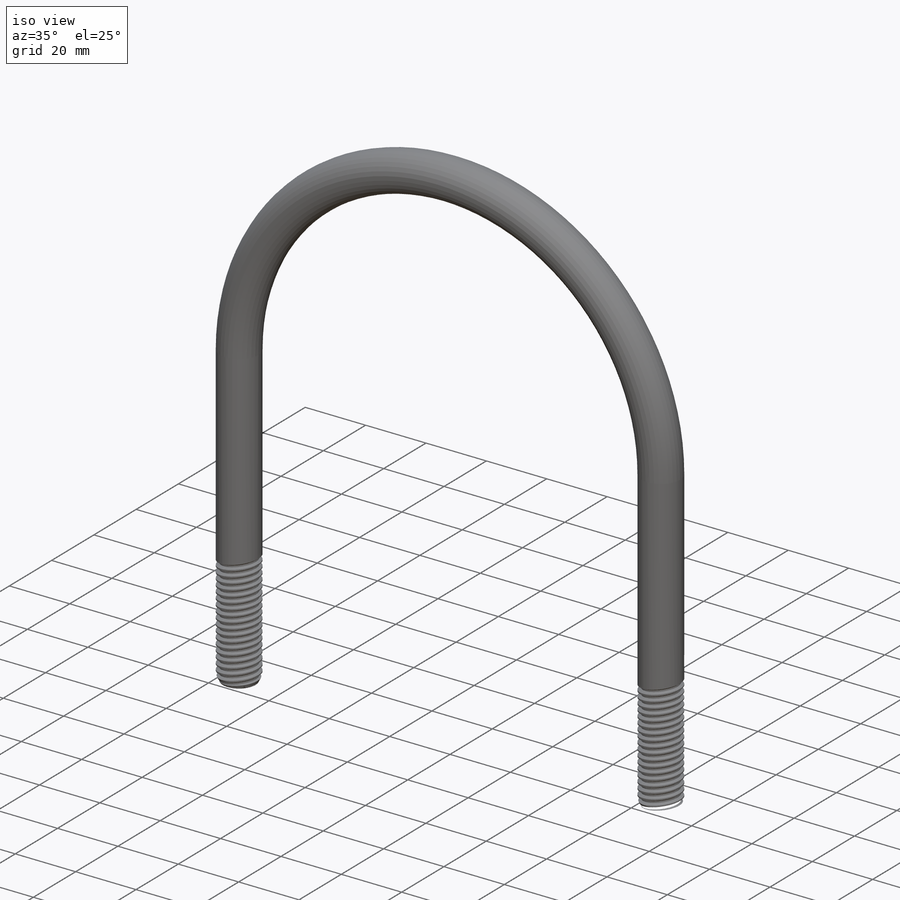
[diagram: iso view]
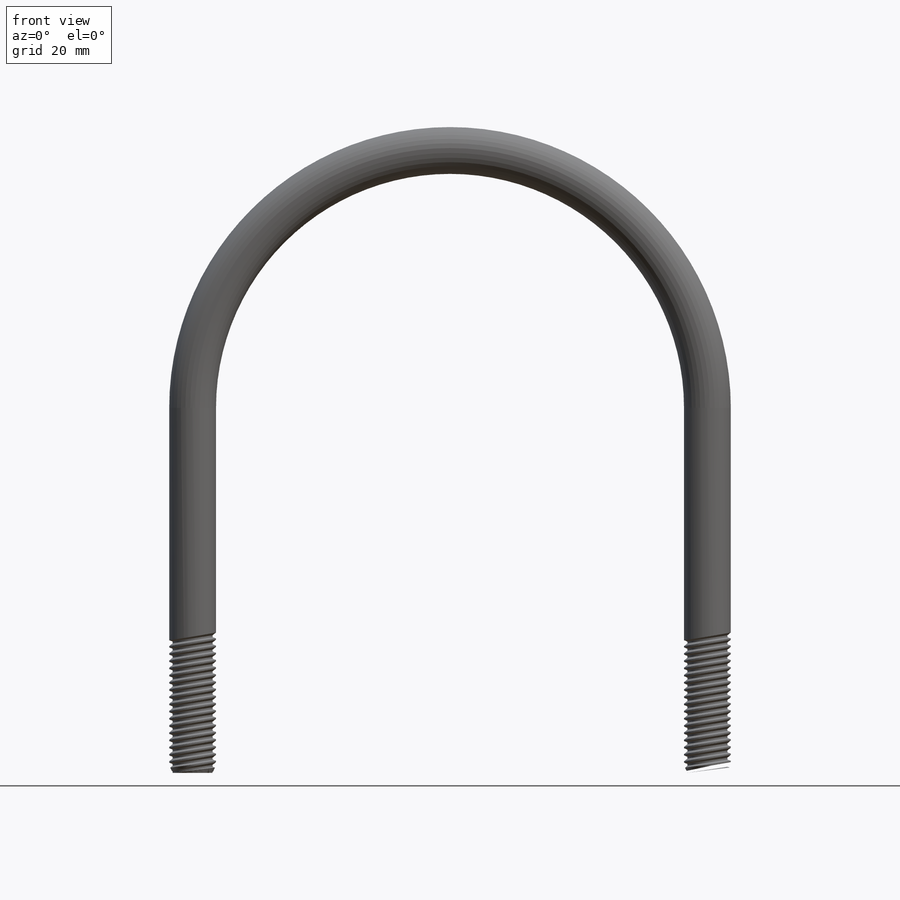
[diagram: front view]
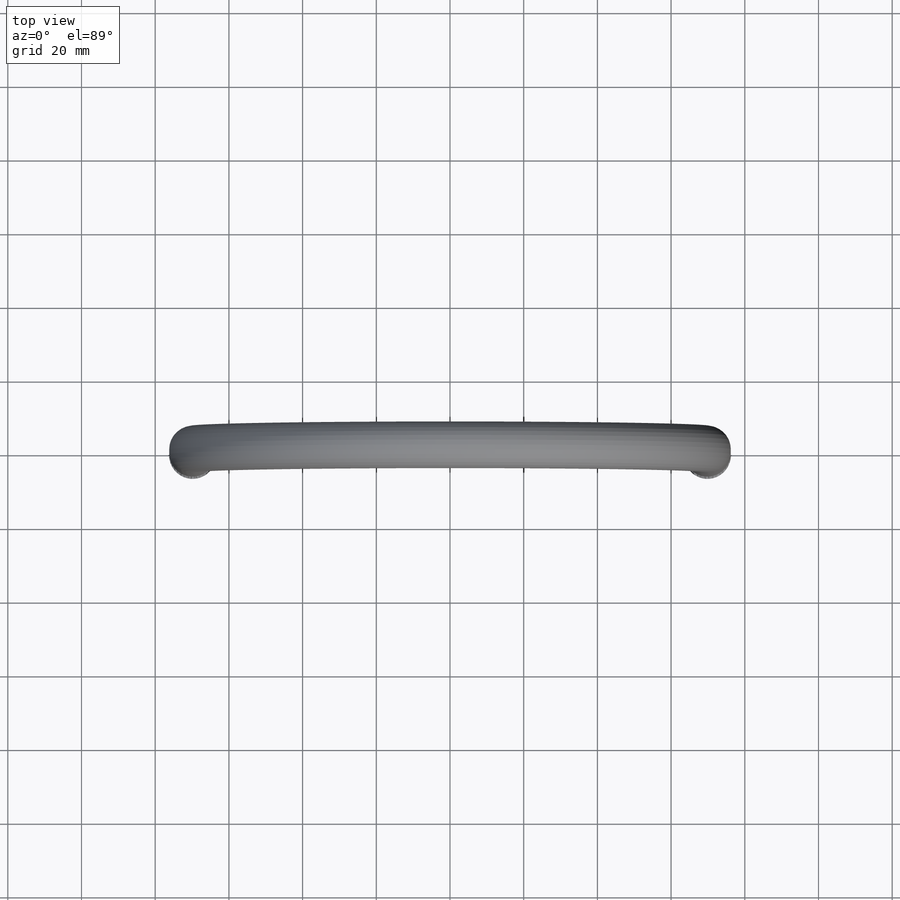
[diagram: top view]
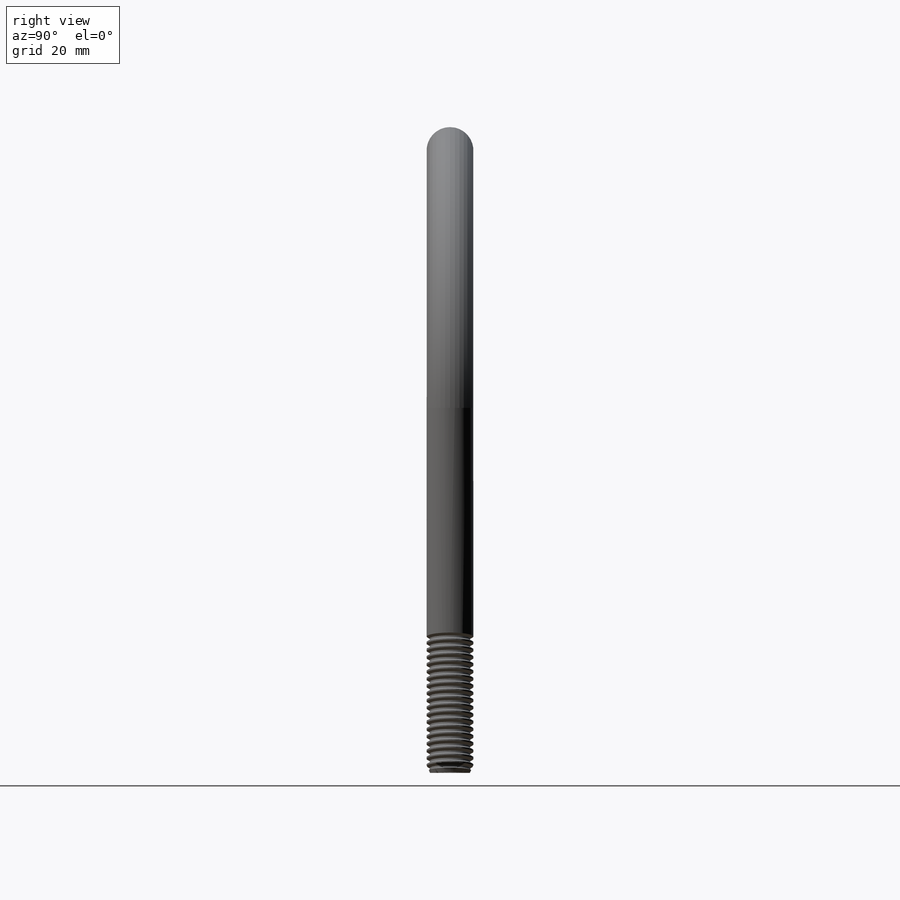
[diagram: right view]
SOLIDWORKS PART (.sldprt)
format: sldprt  version: not decoded by parser v0  size: 772,608 bytes
history: native  units: mm
features: sketch x11, cut_revolve x4, sweep x2, pattern_linear x2, plane x2, extrude x2, material x1, cut_extrude x1, chamfer x1 (+12 scaffold rows collapsed)
feature tree (38):
  scaffold x12  (default folders/planes/origin — collapsed)
  material  "Material <not specified>"
  sketch  "Sketch1"  dims[ID=127.0mm Wire Dia=12.7mm Depth=80.9625mm C-C=139.7mm D=99.06mm]
  sketch  "Sketch2"
  sweep  "Sweep1"
  sketch  "Sketch4"  dims[c1.D1=~1.368407mm c1.D2=~0.279276mm c1.D3=~0.488462mm c1.Thread Pitch=~1.953846mm c2.D2=~0.244231mm c2.D1=~1.031875mm c3.D1=60.0deg c3.D4=~1.953846mm c3.Thread Length=38.1mm c3.D5=~2.450851mm]
  cut_revolve  "Cut-Revolve1"  Angle=360deg
  sketch  "Sketch5"  dims[c1.D1=~2.018391mm c2.D1=25.0deg]
  cut_revolve  "Cut-Revolve2"  Angle=360deg
  sketch  "Sketch6"
  cut_revolve  "Cut-Revolve3"  Angle=360deg
  pattern_linear  "LPattern2"  Count1=2 Count2=20 Spacing1=139.7mm Spacing2=1.953846mm
  sketch  "Sketch9"  dims[E=63.5mm]
  plane  "Plane2"
  sketch  "Sketch10"  dims[c1.D1=12.7mm c1.D2=13.335mm c1.D3=~9.14412mm c2.D3=30.0deg c2.D4=3.175mm c2.F=31.496mm c2.A Hole=114.3mm c2.D5=~2.732302mm c2.D6=~1.366151mm c3.D5=12.7mm c3.D6=~2.732302mm]
  sweep  "Sweep2"
  sketch  "Sketch11"  dims[D1=0.0mm]
  extrude  "Extrude2"  [1 undecoded]
  sketch  "Sketch12"  dims[D1=114.3mm D2=2.286mm]
  cut_extrude  "Cut-Extrude1"  [1 undecoded]
  plane  "Plane1"  Offset=0.762mm
  sketch  "Sketch7"  dims[D1=12.7508mm Nut Width=19.05mm]
  extrude  "Extrude1"  Depth=11.1125mm Nut Height=11.1125mm
  sketch  "Sketch8"  dims[c1.D1=~0.641938mm c2.D1=45.0deg c2.D2=~0.564597mm c3.D2=25.0deg c3.D1=~0.79712mm c4.D1=25.0deg c4.D2=~0.700235mm c5.D2=45.0deg c6.D2=19.05mm c6.D3=0.127mm c6.D4=0.508mm c6.D1=~2.164511mm c7.D1=25.0deg]
  cut_revolve  "Cut-Revolve4"  Angle=360deg
  chamfer  "Chamfer1"  Distance=0.195385mm Angle=45deg
  pattern_linear  "LPattern3"  Count1=2 Count2=1 Spacing1=139.7mm Spacing2=22.86mm
decode coverage: 17 of 23 modeling features carry decoded parameters
note: ~ marks probable driven/reference dimensions
note: 2 parameter values undecoded
note: suppression state not decoded; provenance and decode notes live in map.json
